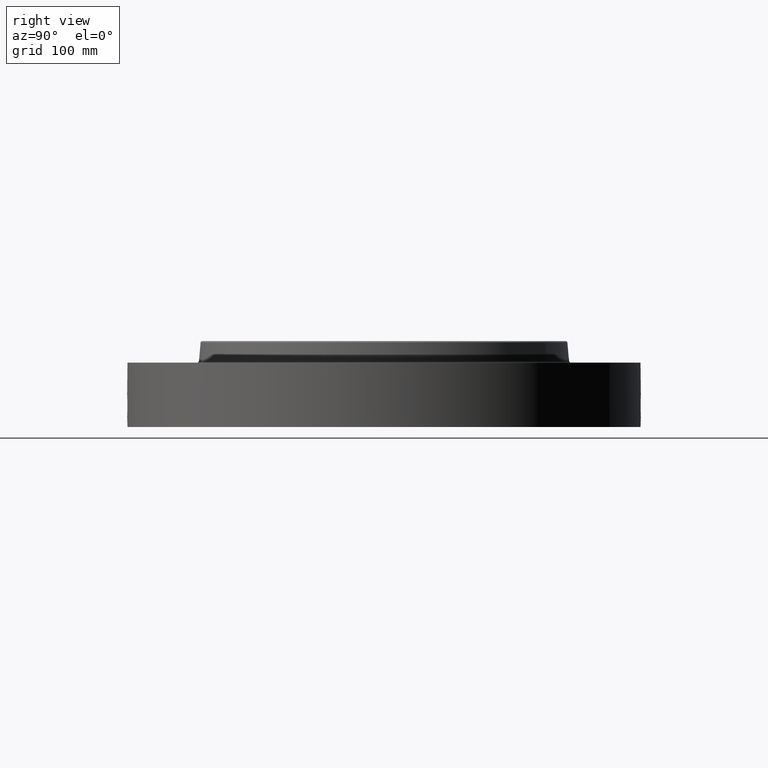
[diagram: clean part render]
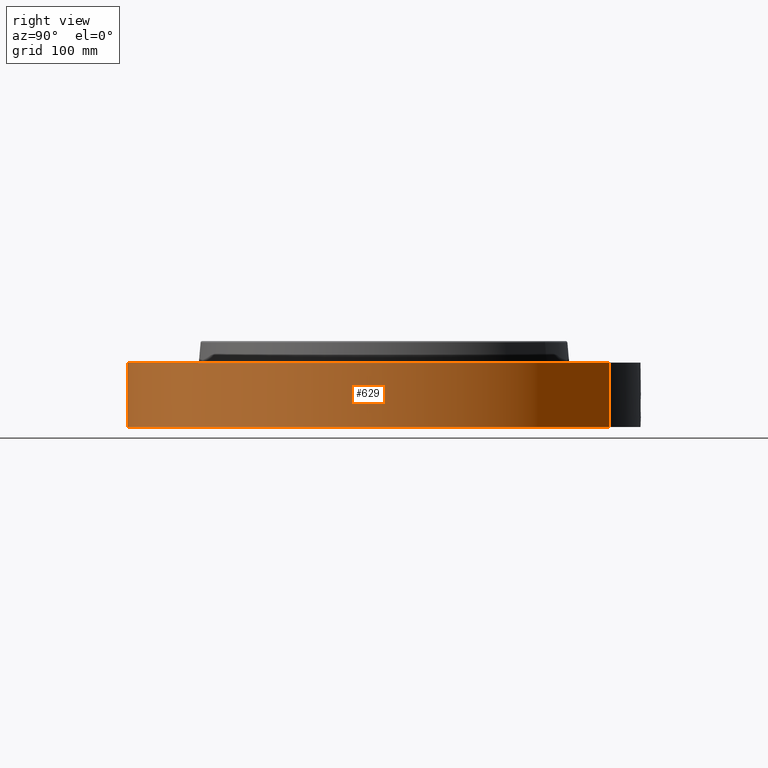
[diagram: same view with one face highlighted and labeled with its STEP entity id]
A machine part, right view. The second image highlights one B-rep face of the part: STEP entity #629.
In plain terms, the highlighted cylindrical surface (partial cylindrical patch) has radius 222.25 mm, axis along (0, 0, -1).
Its self-contained STEP definition (entity closure, byte-faithful):
#38=AXIS2_PLACEMENT_3D('Cylinder Axis2P3D',#35,#36,#37) ;
#169=AXIS2_PLACEMENT_3D('Circle Axis2P3D',#167,#168,$) ;
#533=AXIS2_PLACEMENT_3D('Circle Axis2P3D',#531,#532,$) ;
#35=CARTESIAN_POINT('Axis2P3D Location',(0.,7.99652833788E-018,1.46650000001)) ;
#44=CARTESIAN_POINT('Vertex',(-4.1949734628,-7.67884741657,8.39223703654E-016)) ;
#46=CARTESIAN_POINT('Vertex',(4.1949734628,7.67884741657,8.39223703654E-016)) ;
#49=CARTESIAN_POINT('Line Origine',(-4.1949734628,-7.67884741657,1.0965)) ;
#53=CARTESIAN_POINT('Vertex',(-4.1949734628,-7.67884741657,2.19300000001)) ;
#60=CARTESIAN_POINT('Vertex',(4.1949734628,7.67884741657,2.19300000001)) ;
#63=CARTESIAN_POINT('Line Origine',(4.1949734628,7.67884741657,1.0965)) ;
#167=CARTESIAN_POINT('Axis2P3D Location',(0.,0.,0.)) ;
#531=CARTESIAN_POINT('Axis2P3D Location',(0.,7.99652833788E-018,2.19300000001)) ;
#543=CARTESIAN_POINT('Control Point',(0.0581082113335,-8.74980705138,1.09931275919)) ;
#544=CARTESIAN_POINT('Control Point',(0.0391507428768,-8.74993294954,1.10247040508)) ;
#545=CARTESIAN_POINT('Control Point',(0.0199351377862,-8.7499983976,1.10407954749)) ;
#546=CARTESIAN_POINT('Control Point',(0.000716211241643,-8.74999997072,1.10411849893)) ;
#547=CARTESIAN_POINT('Vertex',(0.058094103343,-8.74980740847,1.09931539446)) ;
#549=CARTESIAN_POINT('Vertex',(0.000716087015019,-8.74999997073,1.10411850938)) ;
#553=CARTESIAN_POINT('Control Point',(0.0580939951518,-8.74980714578,1.09931480802)) ;
#554=CARTESIAN_POINT('Control Point',(0.0974875527321,-8.74954559383,1.09448302669)) ;
#555=CARTESIAN_POINT('Control Point',(0.136129795779,-8.74901297423,1.08246986474)) ;
#556=CARTESIAN_POINT('Control Point',(0.171610206376,-8.74831697744,1.06416185771)) ;
#557=CARTESIAN_POINT('Vertex',(0.171610206376,-8.74831697744,1.06416185771)) ;
#561=CARTESIAN_POINT('Control Point',(0.0302669250486,-8.74994765206,0.341133857002)) ;
#562=CARTESIAN_POINT('Control Point',(0.0865126194171,-8.7497530927,0.348286208238)) ;
#563=CARTESIAN_POINT('Control Point',(0.141163769266,-8.74911210118,0.365899658816)) ;
#564=CARTESIAN_POINT('Control Point',(0.191479456553,-8.74808366168,0.393467512333)) ;
#565=CARTESIAN_POINT('Control Point',(0.264585195537,-8.74612690955,0.452883889275)) ;
#566=CARTESIAN_POINT('Control Point',(0.316528462495,-8.74430507499,0.529208859582)) ;
#567=CARTESIAN_POINT('Control Point',(0.333583700452,-8.74365536444,0.561880812708)) ;
#568=CARTESIAN_POINT('Control Point',(0.368975035562,-8.7422470228,0.654035266168)) ;
#569=CARTESIAN_POINT('Control Point',(0.375098719307,-8.74194353704,0.75267761228)) ;
#570=CARTESIAN_POINT('Control Point',(0.366946086326,-8.74231502189,0.814326508889)) ;
#571=CARTESIAN_POINT('Control Point',(0.33364299583,-8.74374181876,0.912287176385)) ;
#572=CARTESIAN_POINT('Control Point',(0.270966480181,-8.74586349126,0.992724215499)) ;
#573=CARTESIAN_POINT('Control Point',(0.241231379591,-8.74676440465,1.02147019826)) ;
#574=CARTESIAN_POINT('Control Point',(0.207766159028,-8.74760772896,1.04550526854)) ;
#575=CARTESIAN_POINT('Control Point',(0.171610206376,-8.74831697744,1.06416185771)) ;
#576=CARTESIAN_POINT('Vertex',(0.0302669250486,-8.74994765206,0.341133857002)) ;
#580=CARTESIAN_POINT('Control Point',(0.0302669250486,-8.74994765206,0.341133857002)) ;
#581=CARTESIAN_POINT('Control Point',(0.0201721120829,-8.74998257101,0.340866678134)) ;
#582=CARTESIAN_POINT('Control Point',(0.0100722667832,-8.75000000318,0.340947102439)) ;
#583=CARTESIAN_POINT('Control Point',(-2.72878353091E-006,-8.75000000003,0.341374667804)) ;
#584=CARTESIAN_POINT('Vertex',(-2.72878353845E-006,-8.75000000003,0.341374667804)) ;
#588=CARTESIAN_POINT('Control Point',(-0.19328241765,-8.74786499139,0.39620888473)) ;
#589=CARTESIAN_POINT('Control Point',(-0.149259962972,-8.74883765918,0.371336697884)) ;
#590=CARTESIAN_POINT('Control Point',(-0.101168996964,-8.74960564166,0.353535751558)) ;
#591=CARTESIAN_POINT('Control Point',(-0.0508246752552,-8.74999998419,0.34353146512)) ;
#592=CARTESIAN_POINT('Control Point',(-2.72878353089E-006,-8.75000000003,0.341374667805)) ;
#593=CARTESIAN_POINT('Vertex',(-0.19328241765,-8.74786499139,0.39620888473)) ;
#597=CARTESIAN_POINT('Control Point',(-0.19328241765,-8.74786499139,0.39620888473)) ;
#598=CARTESIAN_POINT('Control Point',(-0.222320013058,-8.74722341123,0.412614795596)) ;
#599=CARTESIAN_POINT('Control Point',(-0.249702832986,-8.74649785024,0.431904366686)) ;
#600=CARTESIAN_POINT('Control Point',(-0.275025862903,-8.74572454017,0.453907776808)) ;
#601=CARTESIAN_POINT('Control Point',(-0.341959797188,-8.74345929159,0.525550661124)) ;
#602=CARTESIAN_POINT('Control Point',(-0.384721449439,-8.7415800014,0.615221601379)) ;
#603=CARTESIAN_POINT('Control Point',(-0.399824067751,-8.74084549811,0.679596595578)) ;
#604=CARTESIAN_POINT('Control Point',(-0.400741251113,-8.74084616896,0.793900913394)) ;
#605=CARTESIAN_POINT('Control Point',(-0.360682760073,-8.74259093656,0.898628588334)) ;
#606=CARTESIAN_POINT('Control Point',(-0.336434934853,-8.74359787649,0.940095914252)) ;
#607=CARTESIAN_POINT('Control Point',(-0.267541262188,-8.74613174515,1.02398894536)) ;
#608=CARTESIAN_POINT('Control Point',(-0.174601905415,-8.74851033423,1.07870829013)) ;
#609=CARTESIAN_POINT('Control Point',(-0.117427757749,-8.74951483366,1.09858358611)) ;
#610=CARTESIAN_POINT('Control Point',(-0.0582716037766,-8.75000017228,1.10701111984)) ;
#611=CARTESIAN_POINT('Control Point',(2.58579355322E-005,-8.75,1.10415298432)) ;
#612=CARTESIAN_POINT('Vertex',(2.58579355363E-005,-8.75,1.10415298432)) ;
#616=CARTESIAN_POINT('Control Point',(0.000716087004833,-8.74999997073,1.10411850936)) ;
#617=CARTESIAN_POINT('Control Point',(0.000370996506658,-8.74999999898,1.1041360633)) ;
#618=CARTESIAN_POINT('Control Point',(2.58579413648E-005,-8.75,1.10415298432)) ;
#36=DIRECTION('Axis2P3D Direction',(0.,0.,-0.0393700787402)) ;
#37=DIRECTION('Axis2P3D XDirection',(0.0188750212049,0.0345504945626,0.)) ;
#50=DIRECTION('Vector Direction',(0.,0.,-0.0393700787402)) ;
#64=DIRECTION('Vector Direction',(0.,0.,-0.0393700787402)) ;
#168=DIRECTION('Axis2P3D Direction',(0.,0.,-0.0393700787402)) ;
#532=DIRECTION('Axis2P3D Direction',(0.,0.,-0.0393700787402)) ;
#51=VECTOR('Line Direction',#50,0.0393700787402) ;
#65=VECTOR('Line Direction',#64,0.0393700787402) ;
#537=ORIENTED_EDGE('',*,*,#171,.F.) ;
#538=ORIENTED_EDGE('',*,*,#67,.T.) ;
#539=ORIENTED_EDGE('',*,*,#535,.T.) ;
#540=ORIENTED_EDGE('',*,*,#55,.F.) ;
#621=ORIENTED_EDGE('',*,*,#551,.F.) ;
#622=ORIENTED_EDGE('',*,*,#559,.T.) ;
#623=ORIENTED_EDGE('',*,*,#578,.F.) ;
#624=ORIENTED_EDGE('',*,*,#586,.T.) ;
#625=ORIENTED_EDGE('',*,*,#595,.F.) ;
#626=ORIENTED_EDGE('',*,*,#614,.T.) ;
#627=ORIENTED_EDGE('',*,*,#619,.F.) ;
#628=FACE_BOUND('',#620,.T.) ;
#629=ADVANCED_FACE('PartBody',(#541,#628),#39,.T.) ;
#542=B_SPLINE_CURVE_WITH_KNOTS('',3,(#543,#544,#545,#546),.UNSPECIFIED.,.F.,.U.,(4,4),(4.38919203822,6.52135752185),.UNSPECIFIED.) ;
#552=B_SPLINE_CURVE_WITH_KNOTS('',3,(#553,#554,#555,#556),.UNSPECIFIED.,.F.,.U.,(4,4),(0.,4.4594518449),.UNSPECIFIED.) ;
#560=B_SPLINE_CURVE_WITH_KNOTS('',5,(#561,#562,#563,#564,#565,#566,#567,#568,#569,#570,#571,#572,#573,#574,#575),.UNSPECIFIED.,.F.,.U.,(6,3,3,3,6),(0.,9.85389435978,16.4310832881,27.5941657981,35.1680977923),.UNSPECIFIED.) ;
#579=B_SPLINE_CURVE_WITH_KNOTS('',3,(#580,#581,#582,#583),.UNSPECIFIED.,.F.,.U.,(4,4),(0.,1.05295486204),.UNSPECIFIED.) ;
#587=B_SPLINE_CURVE_WITH_KNOTS('',4,(#588,#589,#590,#591,#592),.UNSPECIFIED.,.F.,.U.,(5,5),(0.,7.08198369593),.UNSPECIFIED.) ;
#596=B_SPLINE_CURVE_WITH_KNOTS('',5,(#597,#598,#599,#600,#601,#602,#603,#604,#605,#606,#607,#608,#609,#610,#611),.UNSPECIFIED.,.F.,.U.,(6,3,3,3,6),(0.,5.83917277404,17.1007667611,25.5637802442,36.4607847231),.UNSPECIFIED.) ;
#615=B_SPLINE_CURVE_WITH_KNOTS('',2,(#616,#617,#618),.UNSPECIFIED.,.F.,.U.,(3,3),(1.04630914316,1.07211456638),.UNSPECIFIED.) ;
#170=CIRCLE('generated circle',#169,8.75000000003) ;
#534=CIRCLE('generated circle',#533,8.75000000003) ;
#39=CYLINDRICAL_SURFACE('generated cylinder',#38,8.75000000003) ;
#55=EDGE_CURVE('',#45,#54,#52,.F.) ;
#67=EDGE_CURVE('',#47,#61,#66,.F.) ;
#171=EDGE_CURVE('',#47,#45,#170,.T.) ;
#535=EDGE_CURVE('',#61,#54,#534,.T.) ;
#551=EDGE_CURVE('',#548,#550,#542,.T.) ;
#559=EDGE_CURVE('',#548,#558,#552,.T.) ;
#578=EDGE_CURVE('',#577,#558,#560,.T.) ;
#586=EDGE_CURVE('',#577,#585,#579,.T.) ;
#595=EDGE_CURVE('',#594,#585,#587,.T.) ;
#614=EDGE_CURVE('',#594,#613,#596,.T.) ;
#619=EDGE_CURVE('',#550,#613,#615,.T.) ;
#536=EDGE_LOOP('',(#537,#538,#539,#540)) ;
#620=EDGE_LOOP('',(#621,#622,#623,#624,#625,#626,#627)) ;
#541=FACE_OUTER_BOUND('',#536,.T.) ;
#52=LINE('Line',#49,#51) ;
#66=LINE('Line',#63,#65) ;
#45=VERTEX_POINT('',#44) ;
#47=VERTEX_POINT('',#46) ;
#54=VERTEX_POINT('',#53) ;
#61=VERTEX_POINT('',#60) ;
#548=VERTEX_POINT('',#547) ;
#550=VERTEX_POINT('',#549) ;
#558=VERTEX_POINT('',#557) ;
#577=VERTEX_POINT('',#576) ;
#585=VERTEX_POINT('',#584) ;
#594=VERTEX_POINT('',#593) ;
#613=VERTEX_POINT('',#612) ;